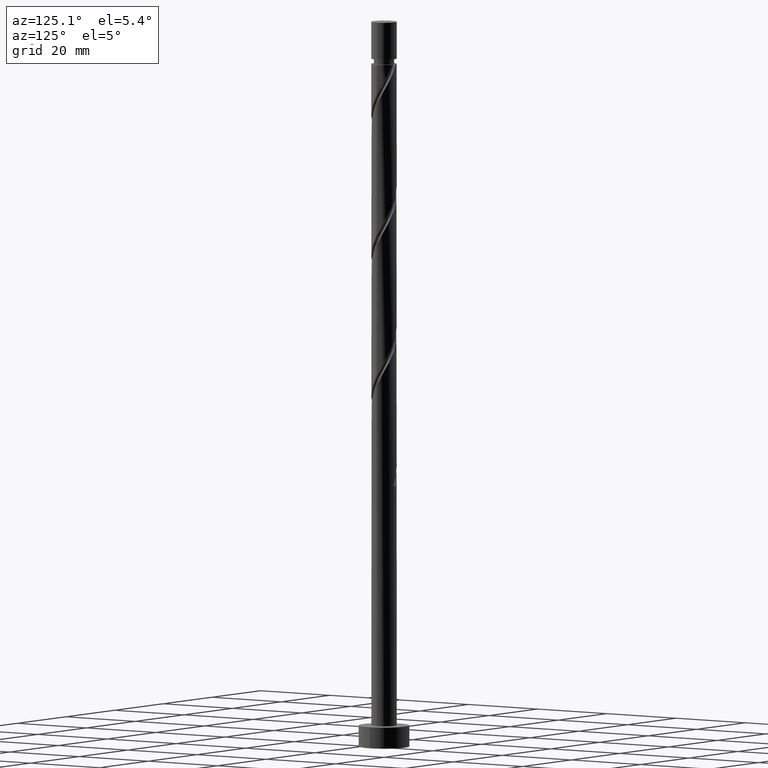
[diagram: clean part render]
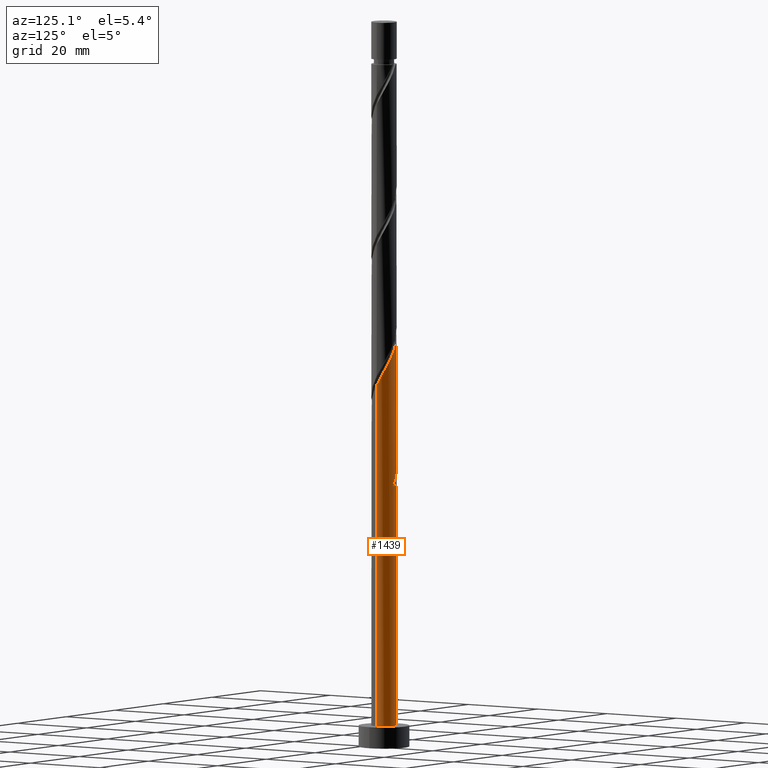
[diagram: same view with one face highlighted and labeled with its STEP entity id]
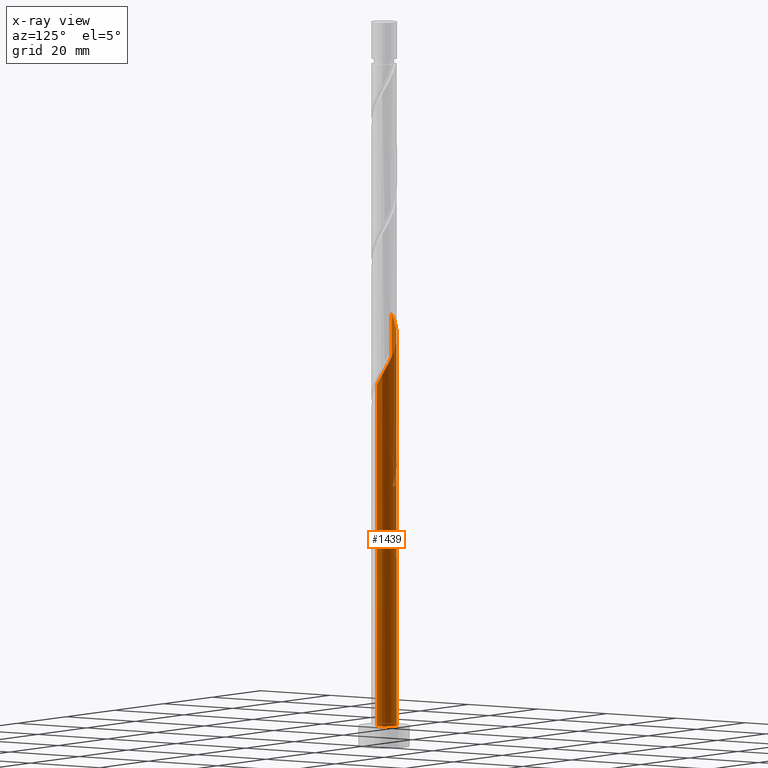
[diagram: x-ray of the same camera — body ghosted, the highlighted face saturated]
A machine part, auxiliary view. The second image highlights one B-rep face of the part: STEP entity #1439.
The next image is the same camera in x-ray: the body ghosted, the highlighted face saturated — about 0% of this face is hidden behind the body in this view.
In plain terms, the highlighted cylindrical surface (edge-blend (fillet) strip) has radius 3 mm, axis along (-0, -0, -1).
Its self-contained STEP definition (entity closure, byte-faithful):
#10 = CARTESIAN_POINT ( 'NONE',  ( -1.337578430002086316, 2.685308910273303429, 63.41743739201051255 ) ) ;
#32 = VECTOR ( 'NONE', #1622, 1000.000000000000000 ) ;
#48 = DIRECTION ( 'NONE',  ( 1.000000000000000000, 0.000000000000000000, 0.000000000000000000 ) ) ;
#51 = CARTESIAN_POINT ( 'NONE',  ( 0.000000000000000000, 0.000000000000000000, 172.0000000000000000 ) ) ;
#62 = VECTOR ( 'NONE', #155, 1000.000000000000000 ) ;
#66 = CARTESIAN_POINT ( 'NONE',  ( 3.000000000000000444, 3.673940397442059868E-16, 172.0000000000000000 ) ) ;
#121 = EDGE_CURVE ( 'NONE', #795, #211, #1023, .T. ) ;
#155 = DIRECTION ( 'NONE',  ( -0.000000000000000000, -0.000000000000000000, -1.000000000000000000 ) ) ;
#165 = AXIS2_PLACEMENT_3D ( 'NONE', #869, #746, #482 ) ;
#211 = VERTEX_POINT ( 'NONE', #723 ) ;
#218 = CYLINDRICAL_SURFACE ( 'NONE', #961, 3.000000000000000444 ) ;
#219 = CARTESIAN_POINT ( 'NONE',  ( -0.9529893618115774512, 2.844610918258237309, 64.80632628089941250 ) ) ;
#240 = CARTESIAN_POINT ( 'NONE',  ( 2.509213369244501113, 1.691106054833252159, 89.11188183645492700 ) ) ;
#244 =( BOUNDED_CURVE ( )  B_SPLINE_CURVE ( 2, ( #661, #1596, #936, #1343, #806, #240, #1617, #1743, #646, #369, #529, #506, #639, #928, #1488, #395, #670, #1349, #1188, #1072, #1473, #792, #799, #1215, #1079, #536, #912 ),
 .UNSPECIFIED., .F., .T. ) 
 B_SPLINE_CURVE_WITH_KNOTS ( ( 3, 2, 2, 2, 2, 2, 2, 2, 2, 2, 2, 2, 2, 3 ),
 ( 0.1795317669814461836, 0.1875000000000000000, 0.1979166666666666297, 0.2083333333333333703, 0.2187500000000000000, 0.2291666666666666297, 0.2395833333333333703, 0.2500000000000000000, 0.2604166666666666297, 0.2708333333333333703, 0.2812500000000000000, 0.2916666666666666297, 0.3020833333333333703, 0.3045317669814464057 ),
 .UNSPECIFIED. ) 
 CURVE ( )  GEOMETRIC_REPRESENTATION_ITEM ( )  RATIONAL_B_SPLINE_CURVE ( ( 0.9062941362546466095, 0.9031415850403508028, 0.9090909090909261581, 0.9013135103398447479, 0.9090909090909261581, 0.9013135103398447479, 0.9090909090909261581, 0.9013135103398447479, 0.9090909090909261581, 0.9013135103398447479, 0.9090909090909261581, 0.9013135103398447479, 0.9090909090909261581, 0.9013135103398447479, 0.9090909090909261581, 0.9013135103398447479, 0.9090909090909261581, 0.9013135103398447479, 0.9090909090909261581, 0.9013135103398447479, 0.9090909090909261581, 0.9013135103398447479, 0.9090909090909261581, 0.9013135103398447479, 0.9090909090909261581, 0.9072628343904198811, 0.9062941362546464985 ) ) 
 REPRESENTATION_ITEM ( '' )  );
#259 = CARTESIAN_POINT ( 'NONE',  ( -2.247618455994264242, 1.987010638188424050, 67.58410405867719817 ) ) ;
#273 = CARTESIAN_POINT ( 'NONE',  ( -0.9840508051709169202, 2.861404451302104412, 62.72299294756603416 ) ) ;
#276 = EDGE_LOOP ( 'NONE', ( #574, #1195, #475, #330, #762, #608, #1561, #635 ) ) ;
#277 = CARTESIAN_POINT ( 'NONE',  ( 3.000000000000006217, -6.729202999629023784E-16, 85.96498184791155950 ) ) ;
#280 = VERTEX_POINT ( 'NONE', #931 ) ;
#304 = EDGE_CURVE ( 'NONE', #427, #601, #526, .T. ) ;
#315 = CARTESIAN_POINT ( 'NONE',  ( -2.282915221543597273, 1.986023542744036696, 65.50077072534382694 ) ) ;
#328 = DIRECTION ( 'NONE',  ( 0.000000000000000000, 0.000000000000000000, 1.000000000000000000 ) ) ;
#330 = ORIENTED_EDGE ( 'NONE', *, *, #585, .F. ) ;
#369 = CARTESIAN_POINT ( 'NONE',  ( 1.327489493864653758, 2.719147488601527218, 91.88965961423271267 ) ) ;
#379 = CARTESIAN_POINT ( 'NONE',  ( -3.000000000000000444, 0.000000000000000000, 172.0000000000000000 ) ) ;
#383 = CARTESIAN_POINT ( 'NONE',  ( -2.509213369244495340, 1.691106054833252159, 68.27854850312164103 ) ) ;
#395 = CARTESIAN_POINT ( 'NONE',  ( -0.9840508051709169202, 2.861404451302104412, 96.05632628089936986 ) ) ;
#427 = VERTEX_POINT ( 'NONE', #1303 ) ;
#454 = LINE ( 'NONE', #66, #32 ) ;
#475 = ORIENTED_EDGE ( 'NONE', *, *, #847, .T. ) ;
#482 = DIRECTION ( 'NONE',  ( -1.000000000000000000, 0.000000000000000000, 0.000000000000000000 ) ) ;
#506 = CARTESIAN_POINT ( 'NONE',  ( 0.5784892297585085830, 2.970074347914953616, 93.27854850312159840 ) ) ;
#526 =( BOUNDED_CURVE ( )  B_SPLINE_CURVE ( 2, ( #1338, #1068, #1607, #1731, #1291, #383, #259, #1193, #1028, #1060, #219, #1471, #1599, #1739, #1204 ),
 .UNSPECIFIED., .F., .T. ) 
 B_SPLINE_CURVE_WITH_KNOTS ( ( 3, 2, 2, 2, 2, 2, 2, 3 ),
 ( 0.9295317669814463502, 0.9375000000000000000, 0.9479166666666666297, 0.9583333333333333703, 0.9687500000000000000, 0.9791666666666666297, 0.9895833333333333703, 1.000000000000000000 ),
 .UNSPECIFIED. ) 
 CURVE ( )  GEOMETRIC_REPRESENTATION_ITEM ( )  RATIONAL_B_SPLINE_CURVE ( ( 0.9062941362546392821, 0.9031415850403435863, 0.9090909090909189416, 0.9013135103398374204, 0.9090909090909189416, 0.9013135103398374204, 0.9090909090909189416, 0.9013135103398374204, 0.9090909090909189416, 0.9013135103398374204, 0.9090909090909189416, 0.9013135103398374204, 0.9090909090909189416, 0.9013135103398374204, 0.9090909090909189416 ) ) 
 REPRESENTATION_ITEM ( '' )  );
#529 = CARTESIAN_POINT ( 'NONE',  ( 0.9529893618115812259, 2.844610918258240861, 92.58410405867719817 ) ) ;
#536 = CARTESIAN_POINT ( 'NONE',  ( -3.000000000000006217, 0.09222585497301828694, 102.4684848265500676 ) ) ;
#574 = ORIENTED_EDGE ( 'NONE', *, *, #1117, .F. ) ;
#585 = EDGE_CURVE ( 'NONE', #211, #768, #1376, .T. ) ;
#597 = CARTESIAN_POINT ( 'NONE',  ( -1.987010638188426048, 2.247618455994269571, 64.80632628089942671 ) ) ;
#601 = VERTEX_POINT ( 'NONE', #680 ) ;
#608 = ORIENTED_EDGE ( 'NONE', *, *, #828, .T. ) ;
#635 = ORIENTED_EDGE ( 'NONE', *, *, #1165, .F. ) ;
#639 = CARTESIAN_POINT ( 'NONE',  ( 0.1842775552007419049, 2.994334948306430988, 93.97299294756608390 ) ) ;
#646 = CARTESIAN_POINT ( 'NONE',  ( 1.656756518304345560, 2.501031355072563134, 91.19521516978832665 ) ) ;
#661 = CARTESIAN_POINT ( 'NONE',  ( 3.000000000000006661, -6.729202999629023784E-16, 85.96498184791157371 ) ) ;
#670 = CARTESIAN_POINT ( 'NONE',  ( -1.337578430002086316, 2.685308910273303429, 96.75077072534389799 ) ) ;
#673 = CARTESIAN_POINT ( 'NONE',  ( -3.000000000000000444, 0.000000000000000000, 172.0000000000000000 ) ) ;
#680 = CARTESIAN_POINT ( 'NONE',  ( 0.5969924622639729561, 2.940000000000001279, 62.02854850312161972 ) ) ;
#711 = VERTEX_POINT ( 'NONE', #277 ) ;
#722 = DIRECTION ( 'NONE',  ( -0.000000000000000000, -0.000000000000000000, -1.000000000000000000 ) ) ;
#723 = CARTESIAN_POINT ( 'NONE',  ( -3.000000000000006217, -1.211256539933224222E-15, 69.29831518124487388 ) ) ;
#737 = CIRCLE ( 'NONE', #1054, 3.000000000000000444 ) ;
#746 = DIRECTION ( 'NONE',  ( 0.000000000000000000, -0.000000000000000000, -1.000000000000000000 ) ) ;
#758 = CARTESIAN_POINT ( 'NONE',  ( -0.5969924622639718459, 2.940000000000006164, 62.02854850312161972 ) ) ;
#762 = ORIENTED_EDGE ( 'NONE', *, *, #121, .F. ) ;
#768 = VERTEX_POINT ( 'NONE', #1414 ) ;
#792 = CARTESIAN_POINT ( 'NONE',  ( -2.719147488601528551, 1.327489493864652426, 100.2229929475660555 ) ) ;
#795 = VERTEX_POINT ( 'NONE', #758 ) ;
#799 = CARTESIAN_POINT ( 'NONE',  ( -2.844610918258241750, 0.9529893618115803378, 100.9174373920105126 ) ) ;
#806 = CARTESIAN_POINT ( 'NONE',  ( 2.685308910273303873, 1.337578430002084984, 88.41743739201054098 ) ) ;
#828 = EDGE_CURVE ( 'NONE', #795, #601, #1105, .T. ) ;
#847 = EDGE_CURVE ( 'NONE', #1021, #768, #737, .T. ) ;
#855 = CARTESIAN_POINT ( 'NONE',  ( -2.970074347914954505, 0.5784892297585066956, 68.27854850312161261 ) ) ;
#869 = CARTESIAN_POINT ( 'NONE',  ( 0.000000000000000000, 0.000000000000000000, 62.02854850312161972 ) ) ;
#912 = CARTESIAN_POINT ( 'NONE',  ( -3.000000000000006217, -1.211256539933224222E-15, 102.6316485145782167 ) ) ;
#928 = CARTESIAN_POINT ( 'NONE',  ( -0.2099341193570249398, 3.018595548697906583, 94.66743739201051255 ) ) ;
#931 = CARTESIAN_POINT ( 'NONE',  ( -3.000000000000006217, -1.211256539933224222E-15, 102.6316485145782167 ) ) ;
#936 = CARTESIAN_POINT ( 'NONE',  ( 2.940000000000006164, 0.5969924622639722900, 87.02854850312164103 ) ) ;
#961 = AXIS2_PLACEMENT_3D ( 'NONE', #51, #722, #1128 ) ;
#968 = CARTESIAN_POINT ( 'NONE',  ( -2.719147488601528551, 1.327489493864652426, 66.88965961423272688 ) ) ;
#1020 = CARTESIAN_POINT ( 'NONE',  ( 0.000000000000000000, 0.000000000000000000, 5.000000000000000000 ) ) ;
#1021 = VERTEX_POINT ( 'NONE', #1207 ) ;
#1023 =( BOUNDED_CURVE ( )  B_SPLINE_CURVE ( 2, ( #1663, #273, #10, #1189, #597, #315, #1668, #968, #1142, #855, #1380, #1101, #1399 ),
 .UNSPECIFIED., .F., .T. ) 
 B_SPLINE_CURVE_WITH_KNOTS ( ( 3, 2, 2, 2, 2, 2, 3 ),
 ( 0.000000000000000000, 0.01041666666666662966, 0.02083333333333337034, 0.03125000000000000000, 0.04166666666666662966, 0.05208333333333337034, 0.05453176698144620443 ),
 .UNSPECIFIED. ) 
 CURVE ( )  GEOMETRIC_REPRESENTATION_ITEM ( )  RATIONAL_B_SPLINE_CURVE ( ( 0.9090909090909261581, 0.9013135103398447479, 0.9090909090909261581, 0.9013135103398447479, 0.9090909090909261581, 0.9013135103398447479, 0.9090909090909261581, 0.9013135103398447479, 0.9090909090909261581, 0.9013135103398447479, 0.9090909090909261581, 0.9072628343904199921, 0.9062941362546464985 ) ) 
 REPRESENTATION_ITEM ( '' )  );
#1028 = CARTESIAN_POINT ( 'NONE',  ( -1.656756518304341341, 2.501031355072559137, 66.19521516978829823 ) ) ;
#1054 = AXIS2_PLACEMENT_3D ( 'NONE', #1020, #328, #48 ) ;
#1060 = CARTESIAN_POINT ( 'NONE',  ( -1.327489493864649761, 2.719147488601524110, 65.50077072534385536 ) ) ;
#1068 = CARTESIAN_POINT ( 'NONE',  ( -3.000000000000000888, 0.3015113445777654055, 70.89202212247576540 ) ) ;
#1072 = CARTESIAN_POINT ( 'NONE',  ( -2.282915221543597273, 1.986023542744036696, 98.83410405867716975 ) ) ;
#1079 = CARTESIAN_POINT ( 'NONE',  ( -2.994334948306430988, 0.1842775552007399342, 102.3063262808993983 ) ) ;
#1101 = CARTESIAN_POINT ( 'NONE',  ( -3.000000000000005773, 0.09222585497302589197, 69.13515149321672482 ) ) ;
#1105 = CIRCLE ( 'NONE', #165, 3.000000000000000444 ) ;
#1117 = EDGE_CURVE ( 'NONE', #711, #280, #244, .T. ) ;
#1128 = DIRECTION ( 'NONE',  ( -1.000000000000000000, 0.000000000000000000, 0.000000000000000000 ) ) ;
#1142 = CARTESIAN_POINT ( 'NONE',  ( -2.844610918258241750, 0.9529893618115803378, 67.58410405867721238 ) ) ;
#1165 = EDGE_CURVE ( 'NONE', #280, #427, #1181, .T. ) ;
#1181 = LINE ( 'NONE', #379, #1310 ) ;
#1188 = CARTESIAN_POINT ( 'NONE',  ( -1.987010638188426048, 2.247618455994269571, 98.13965961423275530 ) ) ;
#1189 = CARTESIAN_POINT ( 'NONE',  ( -1.691106054833254158, 2.509213369244499336, 64.11188183645495542 ) ) ;
#1193 = CARTESIAN_POINT ( 'NONE',  ( -1.986023542744033366, 2.282915221543594608, 66.88965961423272688 ) ) ;
#1195 = ORIENTED_EDGE ( 'NONE', *, *, #1693, .T. ) ;
#1204 = CARTESIAN_POINT ( 'NONE',  ( 0.5969924622639730671, 2.940000000000001279, 62.02854850312162682 ) ) ;
#1207 = CARTESIAN_POINT ( 'NONE',  ( 3.000000000000000444, 3.673940397442059868E-16, 5.000000000000000000 ) ) ;
#1215 = CARTESIAN_POINT ( 'NONE',  ( -2.970074347914954505, 0.5784892297585066956, 101.6118818364549412 ) ) ;
#1291 = CARTESIAN_POINT ( 'NONE',  ( -2.685308910273297656, 1.337578430002084762, 68.97299294756609811 ) ) ;
#1303 = CARTESIAN_POINT ( 'NONE',  ( -3.000000000000001332, 2.736542553182491320E-15, 71.42544849166502274 ) ) ;
#1310 = VECTOR ( 'NONE', #1718, 1000.000000000000000 ) ;
#1338 = CARTESIAN_POINT ( 'NONE',  ( -3.000000000000001332, 2.736542553182491320E-15, 71.42544849166502274 ) ) ;
#1343 = CARTESIAN_POINT ( 'NONE',  ( 2.861404451302105301, 0.9840508051709160320, 87.72299294756604127 ) ) ;
#1349 = CARTESIAN_POINT ( 'NONE',  ( -1.691106054833254158, 2.509213369244499336, 97.44521516978828402 ) ) ;
#1376 = LINE ( 'NONE', #673, #62 ) ;
#1380 = CARTESIAN_POINT ( 'NONE',  ( -2.994334948306430988, 0.1842775552007399342, 68.97299294756608390 ) ) ;
#1399 = CARTESIAN_POINT ( 'NONE',  ( -3.000000000000006217, -1.211256539933224222E-15, 69.29831518124487388 ) ) ;
#1414 = CARTESIAN_POINT ( 'NONE',  ( -3.000000000000000444, 0.000000000000000000, 5.000000000000000000 ) ) ;
#1439 = ADVANCED_FACE ( 'NONE', ( #1667 ), #218, .T. ) ;
#1471 = CARTESIAN_POINT ( 'NONE',  ( -0.5784892297585053633, 2.970074347914948731, 64.11188183645495542 ) ) ;
#1473 = CARTESIAN_POINT ( 'NONE',  ( -2.501031355072563134, 1.656756518304344894, 99.52854850312162682 ) ) ;
#1488 = CARTESIAN_POINT ( 'NONE',  ( -0.5969924622639721790, 2.940000000000006164, 95.36188183645498384 ) ) ;
#1561 = ORIENTED_EDGE ( 'NONE', *, *, #304, .F. ) ;
#1596 = CARTESIAN_POINT ( 'NONE',  ( 3.000000000000006661, 0.3015113445777563572, 86.49840821710080263 ) ) ;
#1599 = CARTESIAN_POINT ( 'NONE',  ( -0.1842775552007384077, 2.994334948306426103, 63.41743739201051255 ) ) ;
#1607 = CARTESIAN_POINT ( 'NONE',  ( -2.940000000000001279, 0.5969924622639725120, 70.36188183645495542 ) ) ;
#1617 = CARTESIAN_POINT ( 'NONE',  ( 2.247618455994270903, 1.987010638188424494, 89.80632628089941250 ) ) ;
#1622 = DIRECTION ( 'NONE',  ( -0.000000000000000000, -0.000000000000000000, -1.000000000000000000 ) ) ;
#1663 = CARTESIAN_POINT ( 'NONE',  ( -0.5969924622639718459, 2.940000000000006164, 62.02854850312162682 ) ) ;
#1667 = FACE_OUTER_BOUND ( 'NONE', #276, .T. ) ;
#1668 = CARTESIAN_POINT ( 'NONE',  ( -2.501031355072563134, 1.656756518304344894, 66.19521516978829823 ) ) ;
#1693 = EDGE_CURVE ( 'NONE', #711, #1021, #454, .T. ) ;
#1718 = DIRECTION ( 'NONE',  ( -0.000000000000000000, -0.000000000000000000, -1.000000000000000000 ) ) ;
#1731 = CARTESIAN_POINT ( 'NONE',  ( -2.861404451302099528, 0.9840508051709163651, 69.66743739201051255 ) ) ;
#1739 = CARTESIAN_POINT ( 'NONE',  ( 0.2099341193570283537, 3.018595548697902142, 62.72299294756605548 ) ) ;
#1743 = CARTESIAN_POINT ( 'NONE',  ( 1.986023542744038917, 2.282915221543595496, 90.50077072534381273 ) ) ;